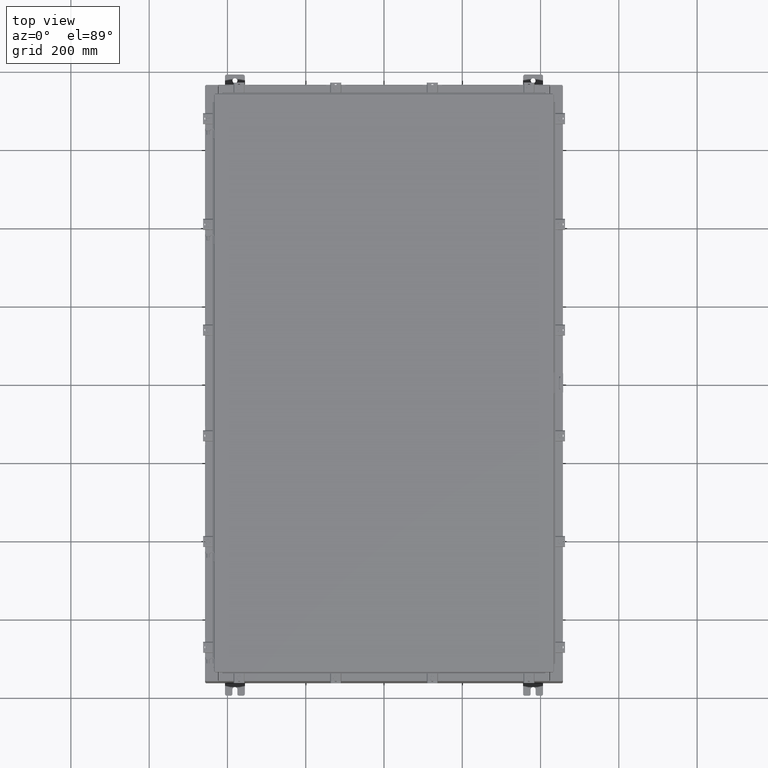
[diagram: clean part render]
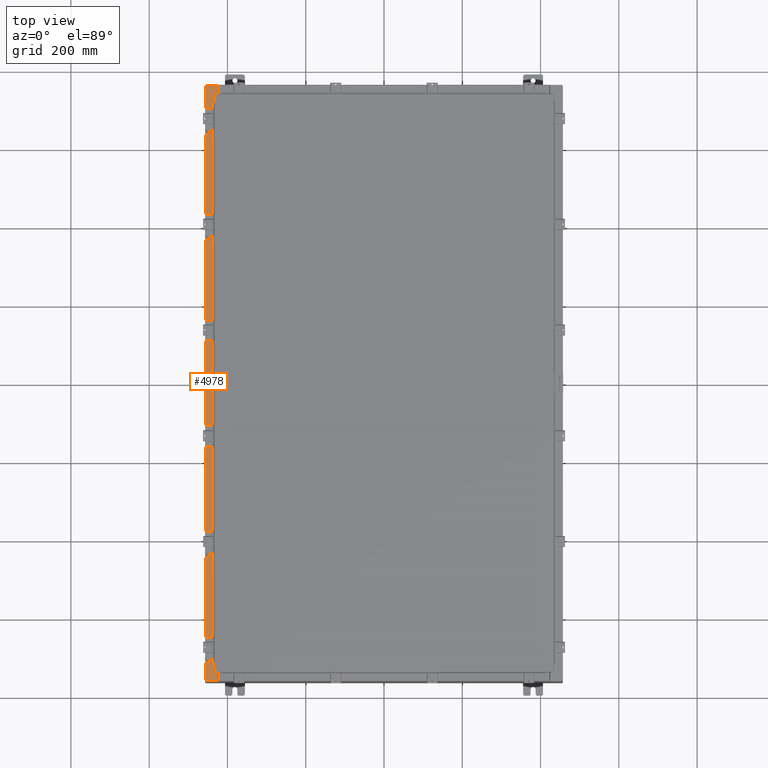
[diagram: same view with one face highlighted and labeled with its STEP entity id]
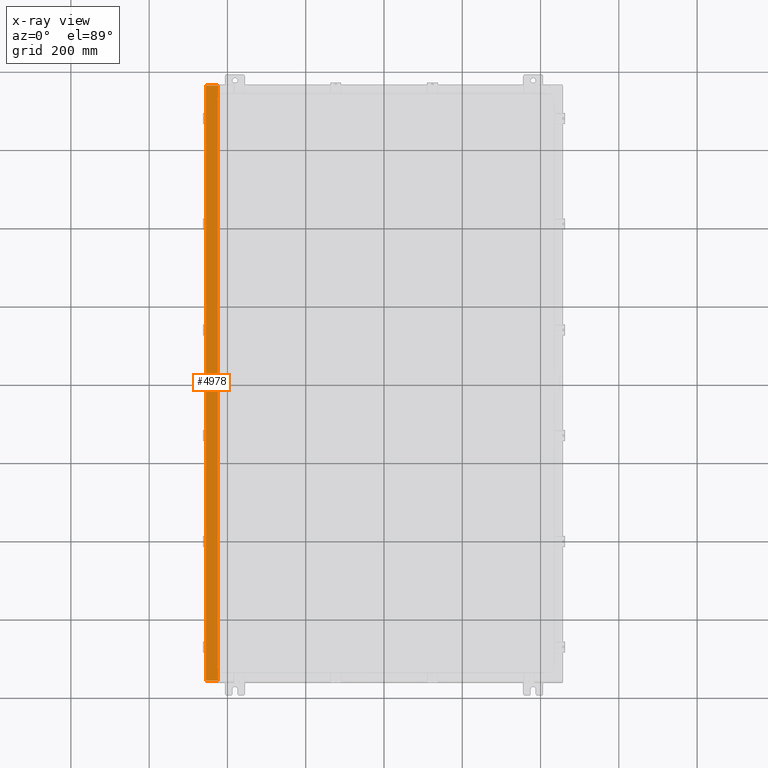
[diagram: x-ray of the same camera — body ghosted, the highlighted face saturated]
A machine part, top view. The second image highlights one B-rep face of the part: STEP entity #4978.
The next image is the same camera in x-ray: the body ghosted, the highlighted face saturated — about 0% of this face is hidden behind the body in this view.
In plain terms, the highlighted planar face has unit normal (0, 0, -1).
Its self-contained STEP definition (entity closure, byte-faithful):
#2 = LINE ( 'NONE', #5835, #15637 ) ;
#79 = DIRECTION ( 'NONE',  ( 1.000000000000000000, 0.0000000000000000000, 0.0000000000000000000 ) ) ;
#324 = LINE ( 'NONE', #10772, #23649 ) ;
#427 = EDGE_LOOP ( 'NONE', ( #25549, #7122, #11698, #4642, #23048, #8876, #23118, #24787, #10319, #4079, #21281, #780 ) ) ;
#566 = VERTEX_POINT ( 'NONE', #10856 ) ;
#780 = ORIENTED_EDGE ( 'NONE', *, *, #13920, .F. ) ;
#785 = AXIS2_PLACEMENT_3D ( 'NONE', #14730, #1977, #16878 ) ;
#887 = LINE ( 'NONE', #24016, #17229 ) ;
#963 = CIRCLE ( 'NONE', #18682, 0.01867499999999949400 ) ;
#1041 = VERTEX_POINT ( 'NONE', #27015 ) ;
#1977 = DIRECTION ( 'NONE',  ( -7.132762385546384700E-015, -0.0000000000000000000, 1.000000000000000000 ) ) ;
#2851 = VERTEX_POINT ( 'NONE', #27313 ) ;
#3479 = VERTEX_POINT ( 'NONE', #16623 ) ;
#3598 = DIRECTION ( 'NONE',  ( 1.000000000000000000, 0.0000000000000000000, 0.0000000000000000000 ) ) ;
#4079 = ORIENTED_EDGE ( 'NONE', *, *, #15971, .F. ) ;
#4352 = CARTESIAN_POINT ( 'NONE',  ( -1.920461720404647100E-013, -29.92530000000007800, 11.92530000000013000 ) ) ;
#4510 = LINE ( 'NONE', #17690, #20152 ) ;
#4561 = VECTOR ( 'NONE', #20000, 39.37007874015748100 ) ;
#4642 = ORIENTED_EDGE ( 'NONE', *, *, #5506, .F. ) ;
#4897 = DIRECTION ( 'NONE',  ( 0.0000000000000000000, 1.000000000000000000, 0.0000000000000000000 ) ) ;
#4978 = ADVANCED_FACE ( 'NONE', ( #12699 ), #21684, .F. ) ;
#5506 = EDGE_CURVE ( 'NONE', #9463, #16545, #15354, .T. ) ;
#5658 = DIRECTION ( 'NONE',  ( 1.000000000000000000, -3.566381192773192400E-015, 7.132762385546384700E-015 ) ) ;
#5835 = CARTESIAN_POINT ( 'NONE',  ( -16.75005000000004800, -28.63110000000000700, 11.92530000000000900 ) ) ;
#6077 = EDGE_CURVE ( 'NONE', #9463, #14282, #14347, .T. ) ;
#6282 = EDGE_CURVE ( 'NONE', #14282, #10168, #9690, .T. ) ;
#7122 = ORIENTED_EDGE ( 'NONE', *, *, #9839, .T. ) ;
#7498 = VECTOR ( 'NONE', #17169, 39.37007874015748100 ) ;
#7808 = VERTEX_POINT ( 'NONE', #24740 ) ;
#7912 = EDGE_CURVE ( 'NONE', #2851, #10168, #2, .T. ) ;
#8129 = EDGE_CURVE ( 'NONE', #566, #2851, #963, .T. ) ;
#8160 = EDGE_CURVE ( 'NONE', #16920, #16545, #324, .T. ) ;
#8876 = ORIENTED_EDGE ( 'NONE', *, *, #6282, .T. ) ;
#9403 = CARTESIAN_POINT ( 'NONE',  ( -16.75005000000004800, 28.59374999999999300, 11.92530000000000900 ) ) ;
#9463 = VERTEX_POINT ( 'NONE', #12194 ) ;
#9690 = LINE ( 'NONE', #11317, #21695 ) ;
#9839 = EDGE_CURVE ( 'NONE', #18835, #16920, #887, .T. ) ;
#10021 = LINE ( 'NONE', #20607, #26354 ) ;
#10168 = VERTEX_POINT ( 'NONE', #27157 ) ;
#10319 = ORIENTED_EDGE ( 'NONE', *, *, #18647, .F. ) ;
#10772 = CARTESIAN_POINT ( 'NONE',  ( -8.532114493236880700E-014, 29.92529999999998900, 11.92530000000013000 ) ) ;
#10856 = CARTESIAN_POINT ( 'NONE',  ( -16.75005000000004800, -28.59375000000001100, 11.92530000000000900 ) ) ;
#10980 = CARTESIAN_POINT ( 'NONE',  ( -8.532114493236880700E-014, 0.0000000000000000000, 11.92530000000013000 ) ) ;
#11072 = EDGE_CURVE ( 'NONE', #18835, #7808, #19506, .T. ) ;
#11075 = DIRECTION ( 'NONE',  ( 7.132762385546384700E-015, 0.0000000000000000000, -1.000000000000000000 ) ) ;
#11317 = CARTESIAN_POINT ( 'NONE',  ( -16.69970000000004600, 0.0000000000000000000, 11.92530000000000900 ) ) ;
#11360 = DIRECTION ( 'NONE',  ( -0.0000000000000000000, -1.000000000000000000, -0.0000000000000000000 ) ) ;
#11698 = ORIENTED_EDGE ( 'NONE', *, *, #8160, .T. ) ;
#12194 = CARTESIAN_POINT ( 'NONE',  ( -17.91230000000004500, -29.92530000000001100, 11.92530000000000400 ) ) ;
#12699 = FACE_OUTER_BOUND ( 'NONE', #427, .T. ) ;
#12817 = DIRECTION ( 'NONE',  ( -7.132762385546384700E-015, -0.0000000000000000000, 1.000000000000000000 ) ) ;
#12875 = CARTESIAN_POINT ( 'NONE',  ( -16.69970000000004600, 28.63109999999998900, 11.92530000000000900 ) ) ;
#13920 = EDGE_CURVE ( 'NONE', #7808, #1041, #14349, .T. ) ;
#14008 = CARTESIAN_POINT ( 'NONE',  ( -16.69970000000004600, 29.92529999999998900, 11.92530000000000900 ) ) ;
#14282 = VERTEX_POINT ( 'NONE', #19929 ) ;
#14347 = LINE ( 'NONE', #4352, #15037 ) ;
#14349 = CIRCLE ( 'NONE', #785, 0.01867499999999949400 ) ;
#14730 = CARTESIAN_POINT ( 'NONE',  ( -16.75005000000004800, 28.61242499999999100, 11.92530000000000900 ) ) ;
#14770 = EDGE_CURVE ( 'NONE', #1041, #15550, #26537, .T. ) ;
#15037 = VECTOR ( 'NONE', #5658, 39.37007874015748100 ) ;
#15150 = AXIS2_PLACEMENT_3D ( 'NONE', #10980, #11075, #25969 ) ;
#15354 = LINE ( 'NONE', #26037, #24662 ) ;
#15550 = VERTEX_POINT ( 'NONE', #15912 ) ;
#15637 = VECTOR ( 'NONE', #3598, 39.37007874015748100 ) ;
#15912 = CARTESIAN_POINT ( 'NONE',  ( -16.71270000000004800, 28.59374999999999300, 11.92530000000000900 ) ) ;
#15971 = EDGE_CURVE ( 'NONE', #15550, #3479, #4510, .T. ) ;
#16545 = VERTEX_POINT ( 'NONE', #25584 ) ;
#16623 = CARTESIAN_POINT ( 'NONE',  ( -16.71270000000004800, -28.59375000000001100, 11.92530000000000900 ) ) ;
#16878 = DIRECTION ( 'NONE',  ( 1.000000000000000000, 0.0000000000000000000, 0.0000000000000000000 ) ) ;
#16920 = VERTEX_POINT ( 'NONE', #14008 ) ;
#17169 = DIRECTION ( 'NONE',  ( -1.000000000000000000, 0.0000000000000000000, 0.0000000000000000000 ) ) ;
#17229 = VECTOR ( 'NONE', #26163, 39.37007874015748100 ) ;
#17690 = CARTESIAN_POINT ( 'NONE',  ( -16.71270000000004800, 28.59374999999999300, 11.92530000000000900 ) ) ;
#18647 = EDGE_CURVE ( 'NONE', #3479, #566, #10021, .T. ) ;
#18682 = AXIS2_PLACEMENT_3D ( 'NONE', #25571, #12817, #79 ) ;
#18835 = VERTEX_POINT ( 'NONE', #19135 ) ;
#19135 = CARTESIAN_POINT ( 'NONE',  ( -16.69970000000004600, 28.63109999999998900, 11.92530000000000900 ) ) ;
#19506 = LINE ( 'NONE', #12875, #7498 ) ;
#19929 = CARTESIAN_POINT ( 'NONE',  ( -16.69970000000004600, -29.92530000000001800, 11.92530000000000900 ) ) ;
#20000 = DIRECTION ( 'NONE',  ( 1.000000000000000000, 0.0000000000000000000, 0.0000000000000000000 ) ) ;
#20152 = VECTOR ( 'NONE', #11360, 39.37007874015748100 ) ;
#20607 = CARTESIAN_POINT ( 'NONE',  ( -16.71270000000004800, -28.59375000000001100, 11.92530000000000900 ) ) ;
#21281 = ORIENTED_EDGE ( 'NONE', *, *, #14770, .F. ) ;
#21684 = PLANE ( 'NONE',  #15150 ) ;
#21695 = VECTOR ( 'NONE', #4897, 39.37007874015748100 ) ;
#23048 = ORIENTED_EDGE ( 'NONE', *, *, #6077, .T. ) ;
#23118 = ORIENTED_EDGE ( 'NONE', *, *, #7912, .F. ) ;
#23534 = DIRECTION ( 'NONE',  ( -1.000000000000000000, 0.0000000000000000000, -7.132762385546384700E-015 ) ) ;
#23649 = VECTOR ( 'NONE', #23534, 39.37007874015748100 ) ;
#23893 = DIRECTION ( 'NONE',  ( -0.0000000000000000000, 1.000000000000000000, -0.0000000000000000000 ) ) ;
#24016 = CARTESIAN_POINT ( 'NONE',  ( -16.69970000000004600, 0.0000000000000000000, 11.92530000000000900 ) ) ;
#24662 = VECTOR ( 'NONE', #23893, 39.37007874015748100 ) ;
#24740 = CARTESIAN_POINT ( 'NONE',  ( -16.75005000000004800, 28.63109999999998900, 11.92530000000000900 ) ) ;
#24787 = ORIENTED_EDGE ( 'NONE', *, *, #8129, .F. ) ;
#25549 = ORIENTED_EDGE ( 'NONE', *, *, #11072, .F. ) ;
#25571 = CARTESIAN_POINT ( 'NONE',  ( -16.75005000000004800, -28.61242500000000900, 11.92530000000000900 ) ) ;
#25584 = CARTESIAN_POINT ( 'NONE',  ( -17.91230000000004500, 29.92529999999998900, 11.92530000000000400 ) ) ;
#25969 = DIRECTION ( 'NONE',  ( -1.000000000000000000, 0.0000000000000000000, -7.132762385546384700E-015 ) ) ;
#26037 = CARTESIAN_POINT ( 'NONE',  ( -17.91230000000004500, 29.92529999999998900, 11.92530000000000400 ) ) ;
#26163 = DIRECTION ( 'NONE',  ( 0.0000000000000000000, 1.000000000000000000, 0.0000000000000000000 ) ) ;
#26354 = VECTOR ( 'NONE', #27124, 39.37007874015748100 ) ;
#26537 = LINE ( 'NONE', #9403, #4561 ) ;
#27015 = CARTESIAN_POINT ( 'NONE',  ( -16.75005000000004800, 28.59374999999999300, 11.92530000000000900 ) ) ;
#27124 = DIRECTION ( 'NONE',  ( -1.000000000000000000, 0.0000000000000000000, 0.0000000000000000000 ) ) ;
#27157 = CARTESIAN_POINT ( 'NONE',  ( -16.69970000000004600, -28.63110000000001400, 11.92530000000000900 ) ) ;
#27313 = CARTESIAN_POINT ( 'NONE',  ( -16.75005000000004800, -28.63110000000000700, 11.92530000000000900 ) ) ;